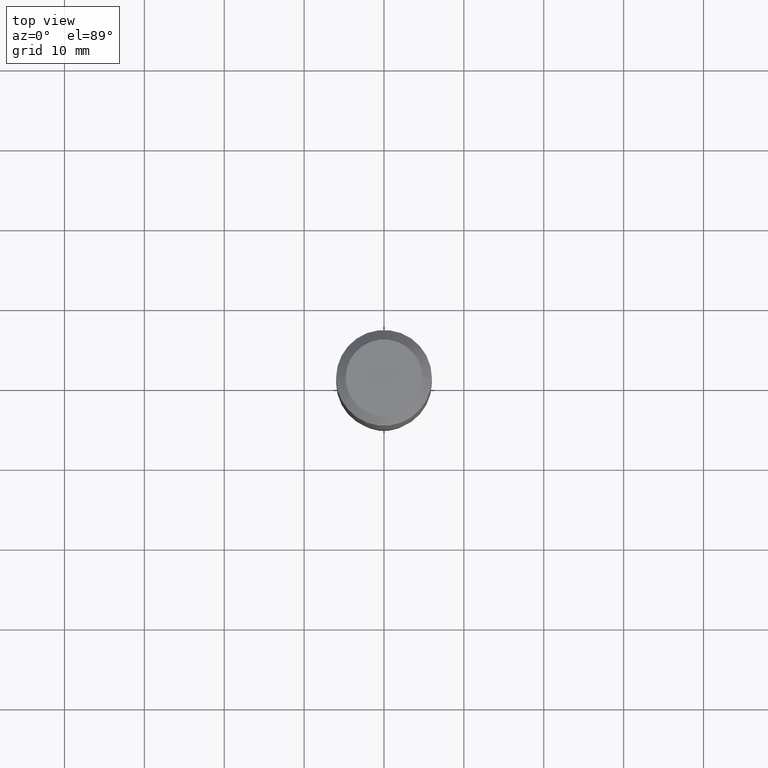
[diagram: clean part render]
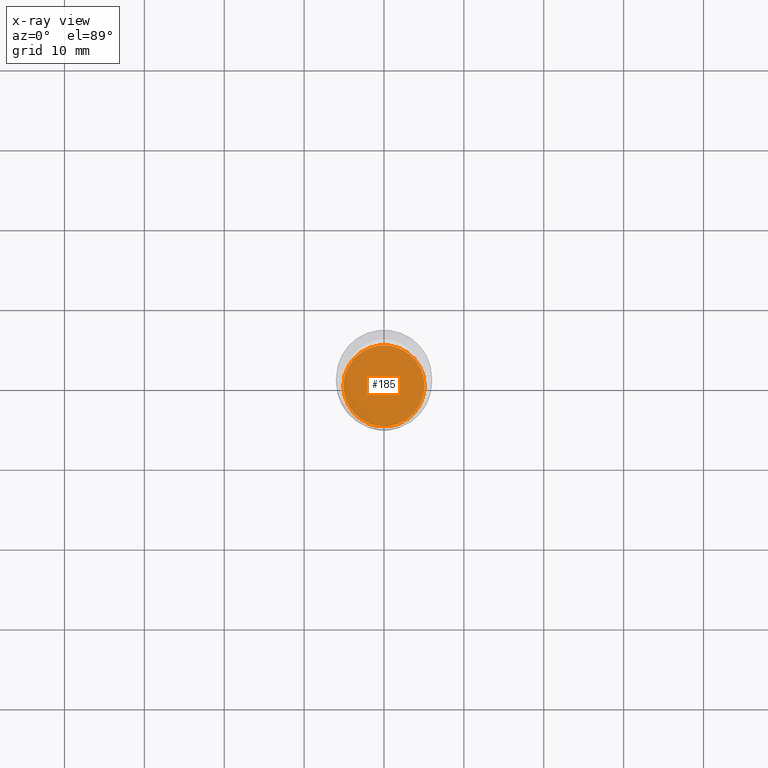
[diagram: x-ray — body ghosted, one internal face saturated and labeled with its STEP entity id]
A machine part, top view, then the same camera in x-ray: the body is ghosted and one INTERNAL B-rep face — a face not visible from any outside direction — is saturated and labeled: STEP entity #185.
In plain terms, the highlighted planar face has unit normal (-0, 0, 1).
Its self-contained STEP definition (entity closure, byte-faithful):
#11 = EDGE_CURVE ( 'NONE', #417, #38, #39, .T. ) ;
#38 = VERTEX_POINT ( 'NONE', #140 ) ;
#39 = CIRCLE ( 'NONE', #448, 0.2003000000000000058 ) ;
#69 = DIRECTION ( 'NONE',  ( 1.000000000000000000, -6.982962677686265922E-15, 4.876176775795935793E-29 ) ) ;
#72 = PLANE ( 'NONE',  #379 ) ;
#94 = DIRECTION ( 'NONE',  ( -2.445468806185136597E-29, 3.491481338843145583E-15, 1.000000000000000000 ) ) ;
#113 = EDGE_LOOP ( 'NONE', ( #491, #217 ) ) ;
#140 = CARTESIAN_POINT ( 'NONE',  ( -0.2003000000000000058, -6.717315599682275290E-15, -2.332299999999999596 ) ) ;
#147 = DIRECTION ( 'NONE',  ( -2.438088387897960049E-29, 3.491481338843145188E-15, 1.000000000000000000 ) ) ;
#185 = ADVANCED_FACE ( 'NONE', ( #434 ), #72, .F. ) ;
#212 = CARTESIAN_POINT ( 'NONE',  ( 5.703566896665592781E-29, -8.143181926583866613E-15, -2.332299999999999596 ) ) ;
#217 = ORIENTED_EDGE ( 'NONE', *, *, #451, .F. ) ;
#301 = DIRECTION ( 'NONE',  ( 1.000000000000000000, -6.982962677686265133E-15, 0.000000000000000000 ) ) ;
#306 = AXIS2_PLACEMENT_3D ( 'NONE', #330, #447, #497 ) ;
#330 = CARTESIAN_POINT ( 'NONE',  ( 5.703566896665592781E-29, -8.143181926583866613E-15, -2.332299999999999596 ) ) ;
#355 = CARTESIAN_POINT ( 'NONE',  ( 5.703566896665592781E-29, -8.143181926583866613E-15, -2.332299999999999596 ) ) ;
#379 = AXIS2_PLACEMENT_3D ( 'NONE', #355, #147, #69 ) ;
#417 = VERTEX_POINT ( 'NONE', #436 ) ;
#434 = FACE_OUTER_BOUND ( 'NONE', #113, .T. ) ;
#436 = CARTESIAN_POINT ( 'NONE',  ( 0.2003000000000000058, -9.541869350924425760E-15, -2.332299999999999596 ) ) ;
#447 = DIRECTION ( 'NONE',  ( -2.445468806185136597E-29, 3.491481338843145583E-15, 1.000000000000000000 ) ) ;
#448 = AXIS2_PLACEMENT_3D ( 'NONE', #212, #94, #301 ) ;
#451 = EDGE_CURVE ( 'NONE', #38, #417, #467, .T. ) ;
#467 = CIRCLE ( 'NONE', #306, 0.2003000000000000058 ) ;
#491 = ORIENTED_EDGE ( 'NONE', *, *, #11, .F. ) ;
#497 = DIRECTION ( 'NONE',  ( 1.000000000000000000, -6.982962677686265133E-15, 0.000000000000000000 ) ) ;